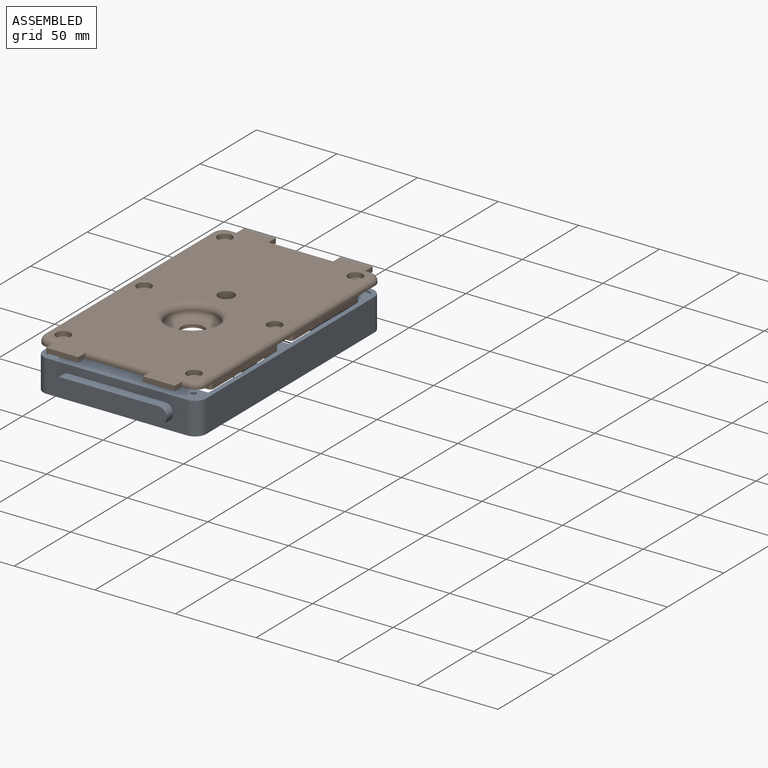
[diagram: assembled view]
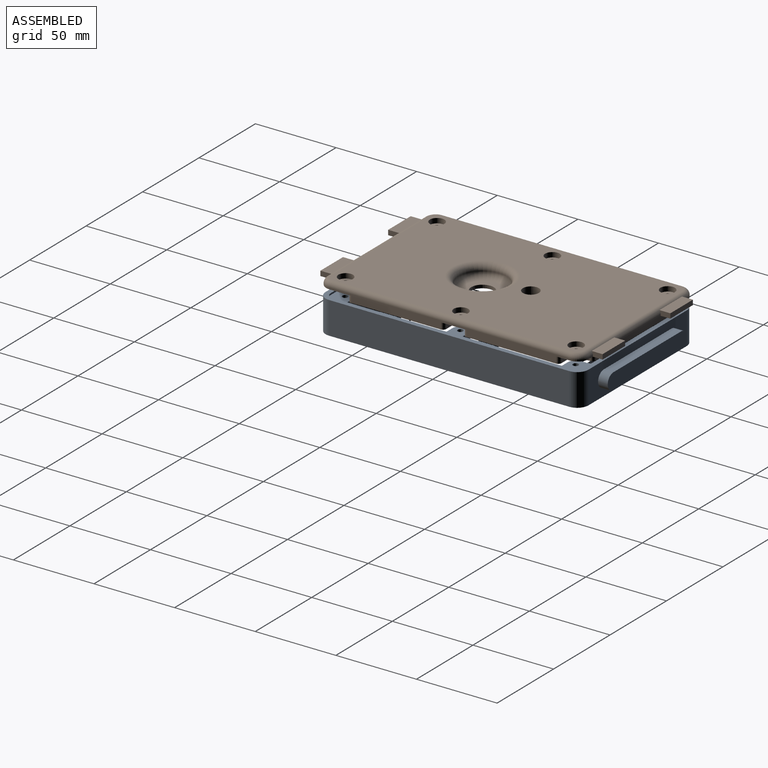
[diagram: assembled view, second angle]
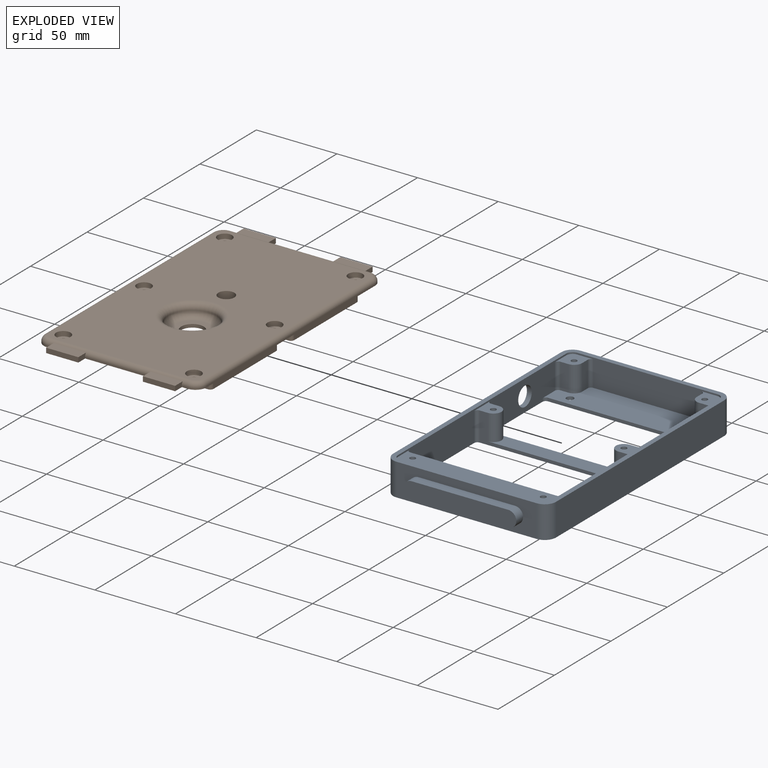
[diagram: exploded view]
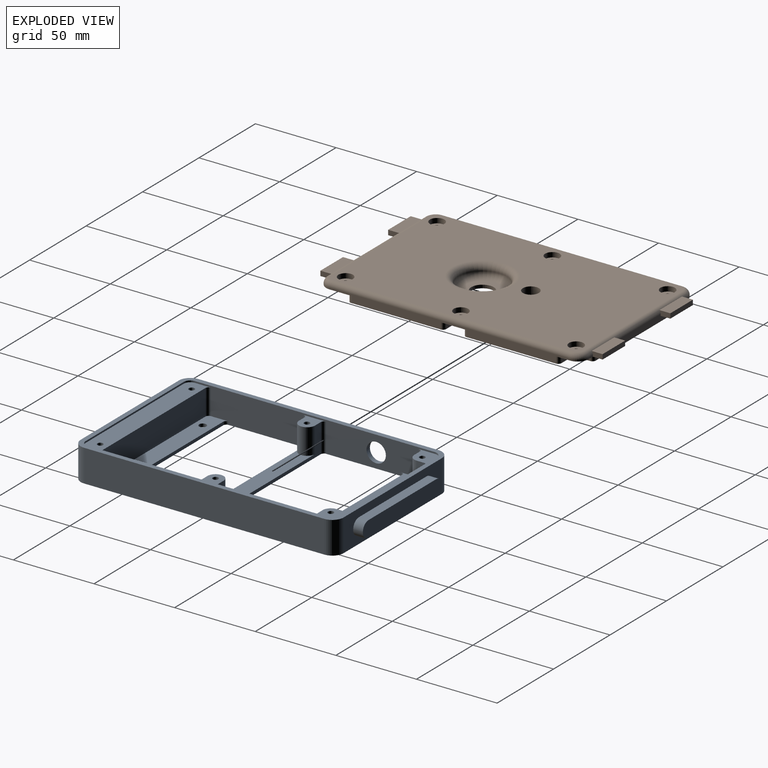
[diagram: exploded view, second angle]
ASSEMBLY  parts=2 mates=3
PART A: 83 faces, bbox 101x175x20 mm
  f0: plane 87x20mm, normal (0,1,0), area 1061.5mm2, adj f21,f26,f32,f33,f73,f74,f75,f76
  f1: plane 149x19mm, normal (-1,0,0), area 2175mm2, adj f3,f6,f12,f16,f20,f22,f23,f24
  f2: plane 149x19mm, normal (1,0,0), area 2061.9mm2, adj f7,f8,f10,f18,f20,f22,f25,f33
  f3: cylinder r=2mm len=18mm, axis (0,0,1), area 56.5mm2, adj f1,f4,f23,f64
  f4: plane 91x18mm, normal (0,-1,0), area 342mm2, adj f3,f8,f19,f23,f40,f44,f55,f64
  f5: plane 91x18mm, normal (0,1,0), area 342mm2, adj f6,f7,f19,f23,f40,f44,f55,f64
  f6: cylinder r=2mm len=18mm, axis (0,0,1), area 56.5mm2, adj f1,f5,f23,f64
  f7: cylinder r=2mm len=18mm, axis (0,0,1), area 56.5mm2, adj f2,f5,f40,f64
  f8: cylinder r=2mm len=18mm, axis (0,0,1), area 56.5mm2, adj f2,f4,f40,f64
  f9: cylinder r=2.25mm len=4.5mm, axis (0,0,1), area 28.3mm2, adj f56,f64
  f10: cylinder r=2mm len=2mm, axis (0,0,1), area 6.3mm2, adj f2,f11,f56,f64
  f11: plane 91x2mm, normal (0,1,0), area 182mm2, adj f10,f12,f56,f64
  f12: cylinder r=2mm len=2mm, axis (0,0,1), area 6.3mm2, adj f1,f11,f56,f64
  f13: cylinder r=2.25mm len=4.5mm, axis (0,0,1), area 28.3mm2, adj f56,f64
  f14: cylinder r=2.25mm len=4.5mm, axis (0,0,1), area 28.3mm2, adj f20,f64
  f15: cylinder r=2.25mm len=4.5mm, axis (0,0,1), area 28.3mm2, adj f20,f64
  f16: cylinder r=2mm len=2mm, axis (0,0,1), area 6.3mm2, adj f1,f17,f20,f64
  f17: plane 91x2mm, normal (0,-1,0), area 182mm2, adj f16,f18,f20,f64
  f18: cylinder r=2mm len=2mm, axis (0,0,1), area 6.3mm2, adj f2,f17,f20,f64
  f19: plane 81x10mm, normal (0,0,1), area 731.5mm2, adj f4,f5,f44,f55
  f20: plane 95x25mm, normal (0,0,1), area 1874.2mm2, adj f1,f2,f14,f15,f16,f17,f18,f35
  f21: plane 163x101mm, normal (0,0,-1), area 512.8mm2, adj f0,f26,f27,f28,f29,f30,f31,f32
  f22: plane 95x14mm, normal (0,0,1), area 1115.6mm2, adj f1,f2,f37,f38,f39,f41,f42,f43
  f23: plane 14x12mm, normal (0,0,1), area 101.4mm2, adj f1,f3,f4,f5,f6,f44,f60
  f24: plane 14x14mm, normal (0,0,1), area 127.3mm2, adj f1,f34,f35,f45,f46,f47,f48,f49
  f25: plane 14x14mm, normal (0,0,1), area 127.3mm2, adj f2,f35,f36,f50,f51,f52,f53,f54
  f26: cylinder r=7mm len=20mm, axis (0,0,-1), area 219.9mm2, adj f0,f21,f27,f33
  f27: plane 149x20mm, normal (-1,0,0), area 2866.9mm2, adj f21,f26,f28,f33,f63
  f28: cylinder r=7mm len=20mm, axis (0,0,-1), area 219.9mm2, adj f21,f27,f29,f33
  f29: plane 87x20mm, normal (0,-1,0), area 1061.5mm2, adj f21,f28,f30,f33,f78,f79,f80,f81
  f30: cylinder r=7mm len=20mm, axis (0,0,-1), area 219.9mm2, adj f21,f29,f31,f33
  f31: plane 149x20mm, normal (1,0,0), area 2980mm2, adj f21,f30,f32,f33
  f32: cylinder r=7mm len=20mm, axis (0,0,-1), area 219.9mm2, adj f0,f21,f31,f33
  f33: plane 163x101mm, normal (0,0,1), area 1519.7mm2, adj f0,f1,f2,f26,f27,f28,f29,f30
  f34: cylinder r=4mm len=4mm, axis (0,0,1), area 6.3mm2, adj f1,f24,f33,f35
  f35: plane 87x17mm, normal (0,-1,0), area 1159mm2, adj f20,f24,f25,f33,f34,f36,f49,f50
  f36: cylinder r=4mm len=4mm, axis (0,0,1), area 6.3mm2, adj f2,f25,f33,f35
  f37: cylinder r=4mm len=4mm, axis (0,0,1), area 6.3mm2, adj f2,f22,f33,f38
  f38: plane 87x1mm, normal (0,1,0), area 87mm2, adj f22,f33,f37,f39
  f39: cylinder r=4mm len=4mm, axis (0,0,1), area 6.3mm2, adj f1,f22,f33,f38
  f40: plane 14x12mm, normal (0,0,1), area 101.4mm2, adj f2,f4,f5,f7,f8,f55,f57
  f41: cylinder r=2mm len=16mm, axis (0,0,1), area 50.3mm2, adj f2,f22,f42,f56
  f42: plane 91x16mm, normal (0,1,0), area 1456mm2, adj f22,f41,f43,f56
  f43: cylinder r=2mm len=16mm, axis (0,0,1), area 50.3mm2, adj f1,f22,f42,f56
  f44: cylinder r=5mm len=16mm, axis (0,0,1), area 251.3mm2, adj f4,f5,f19,f23
  f45: cylinder r=2mm len=16mm, axis (0,0,1), area 50.3mm2, adj f1,f20,f24,f46
  f46: plane 16x5mm, normal (0,-1,0), area 80mm2, adj f20,f24,f45,f47
  f47: cylinder r=5mm len=16mm, axis (0,0,1), area 125.7mm2, adj f20,f24,f46,f48
  f48: plane 16x5mm, normal (-1,0,0), area 80mm2, adj f20,f24,f47,f49
  f49: cylinder r=2mm len=16mm, axis (0,0,1), area 50.3mm2, adj f20,f24,f35,f48
  f50: cylinder r=2mm len=16mm, axis (0,0,1), area 50.3mm2, adj f20,f25,f35,f51
  f51: plane 16x5mm, normal (1,0,0), area 80mm2, adj f20,f25,f50,f52
  f52: cylinder r=5mm len=16mm, axis (0,0,1), area 125.7mm2, adj f20,f25,f51,f53
  f53: plane 16x5mm, normal (0,-1,0), area 80mm2, adj f20,f25,f52,f54
  f54: cylinder r=2mm len=16mm, axis (0,0,1), area 50.3mm2, adj f2,f20,f25,f53
  f55: cylinder r=5mm len=16mm, axis (0,0,1), area 251.3mm2, adj f4,f5,f19,f40
  f56: plane 95x13mm, normal (0,0,1), area 1013.2mm2, adj f1,f2,f9,f10,f11,f12,f13,f41
  f57: cylinder r=1.75mm len=18mm, axis (0,0,1), area 197.9mm2, adj f40,f64
  f58: cylinder r=1.75mm len=18mm, axis (0,0,1), area 197.9mm2, adj f25,f64
  f59: cylinder r=1.75mm len=18mm, axis (0,0,1), area 197.9mm2, adj f24,f64
  f60: cylinder r=1.75mm len=18mm, axis (0,0,1), area 197.9mm2, adj f23,f64
  f61: cylinder r=1.75mm len=18mm, axis (0,0,1), area 197.9mm2, adj f22,f64
  f62: cylinder r=1.75mm len=18mm, axis (0,0,1), area 197.9mm2, adj f22,f64
  f63: cylinder r=6mm len=12mm, axis (-1,0,0), area 113.1mm2, adj f2,f27
  f64: plane 161x99mm, normal (0,0,-1), area 6198.6mm2, adj f1,f2,f3,f4,f5,f6,f7,f8
  f65: plane 87x1mm, normal (0,-1,0), area 87mm2, adj f21,f64,f66,f72
  f66: cylinder r=6mm len=6mm, axis (0,0,-1), area 9.4mm2, adj f21,f64,f65,f67
  f67: plane 149x1mm, normal (-1,0,0), area 149mm2, adj f21,f64,f66,f68
  f68: cylinder r=6mm len=6mm, axis (0,0,-1), area 9.4mm2, adj f21,f64,f67,f69
  f69: plane 87x1mm, normal (0,1,0), area 87mm2, adj f21,f64,f68,f70
  f70: cylinder r=6mm len=6mm, axis (0,0,-1), area 9.4mm2, adj f21,f64,f69,f71
  f71: plane 149x1mm, normal (1,0,0), area 149mm2, adj f21,f64,f70,f72
  f72: cylinder r=6mm len=6mm, axis (0,0,-1), area 9.4mm2, adj f21,f64,f65,f71
  f73: plane 60x6mm, normal (0,0,1), area 360mm2, adj f0,f74,f76,f77
  f74: cylinder r=5mm len=10mm, axis (0,-1,0), area 94.2mm2, adj f0,f73,f75,f77
  f75: plane 60x6mm, normal (0,0,-1), area 360mm2, adj f0,f74,f76,f77
  f76: cylinder r=5mm len=10mm, axis (0,-1,0), area 94.2mm2, adj f0,f73,f75,f77
  f77: plane 70x10mm, normal (0,1,0), area 678.5mm2, adj f73,f74,f75,f76
  f78: cylinder r=5mm len=10mm, axis (0,1,0), area 94.2mm2, adj f29,f79,f81,f82
  f79: plane 60x6mm, normal (0,0,1), area 360mm2, adj f29,f78,f80,f82
  f80: cylinder r=5mm len=10mm, axis (0,1,0), area 94.2mm2, adj f29,f79,f81,f82
  f81: plane 60x6mm, normal (0,0,-1), area 360mm2, adj f29,f78,f80,f82
  f82: plane 70x10mm, normal (0,-1,0), area 678.5mm2, adj f78,f79,f80,f81
PART B: 96 faces, bbox 102.2x175x10 mm
  f0: plane 55.5x6mm, normal (-1,0,0), area 133mm2, adj f18,f47,f52,f53,f56,f77,f83
  f1: plane 55.5x6mm, normal (-1,0,0), area 333mm2, adj f18,f47,f87,f93
  f2: cylinder r=2.25mm len=4.5mm, axis (0,0,-1), area 14.1mm2, adj f29,f47
  f3: cylinder r=2.25mm len=4.5mm, axis (0,0,-1), area 14.1mm2, adj f33,f47
  f4: cylinder r=2.25mm len=4.5mm, axis (0,0,-1), area 14.1mm2, adj f35,f47
  f5: cylinder r=2.25mm len=4.5mm, axis (0,0,-1), area 14.1mm2, adj f37,f47
  f6: cylinder r=2.25mm len=4.5mm, axis (0,0,-1), area 14.1mm2, adj f39,f47
  f7: cylinder r=2.25mm len=4.5mm, axis (0,0,-1), area 14.1mm2, adj f31,f47
  f8: plane 65x6mm, normal (0,1,0), area 390mm2, adj f18,f47,f73,f82
  f9: plane 55.5x6mm, normal (1,0,0), area 333mm2, adj f18,f47,f88,f95
  f10: plane 55.5x6mm, normal (1,0,0), area 333mm2, adj f18,f47,f78,f92
  f11: plane 3.5x1mm, normal (0,1,0), area 3.5mm2, adj f13,f20,f47,f70
  f12: plane 3.5x1mm, normal (0,1,0), area 3.5mm2, adj f13,f26,f47,f67
  f13: cylinder r=3mm len=87mm, axis (1,0,0), area 322.4mm2, adj f11,f12,f19,f27,f40,f41,f65,f66
  f14: plane 40x1mm, normal (0,-1,0), area 40mm2, adj f16,f47,f57,f61
  f15: plane 3.5x1mm, normal (0,-1,0), area 3.5mm2, adj f16,f22,f47,f59
  f16: cylinder r=3mm len=87mm, axis (-1,0,0), area 322.4mm2, adj f14,f15,f23,f27,f44,f45,f57,f58
  f17: cylinder r=7mm len=14mm, axis (0,0,1), area 88mm2, adj f18,f48
  f18: plane 143.5x94mm, normal (0,0,-1), area 11285.7mm2, adj f0,f1,f8,f9,f10,f17,f46,f51
  f19: plane 40x1mm, normal (0,1,0), area 40mm2, adj f13,f47,f65,f69
  f20: cylinder r=7mm len=7mm, axis (0,0,-1), area 11mm2, adj f11,f21,f40,f47
  f21: plane 149x1mm, normal (-1,0,0), area 149mm2, adj f20,f22,f42,f47
  f22: cylinder r=7mm len=7mm, axis (0,0,-1), area 11mm2, adj f15,f21,f44,f47
  f23: plane 3.5x1mm, normal (0,-1,0), area 3.5mm2, adj f16,f24,f47,f62
  f24: cylinder r=7mm len=7mm, axis (0,0,-1), area 11mm2, adj f23,f25,f45,f47
  f25: plane 149x1mm, normal (1,0,0), area 149mm2, adj f24,f26,f43,f47
  f26: cylinder r=7mm len=7mm, axis (0,0,-1), area 11mm2, adj f12,f25,f41,f47
  f27: plane 157x95mm, normal (0,0,1), area 13306.9mm2, adj f13,f16,f28,f30,f32,f34,f36,f38
  f28: cylinder r=4.5mm len=9mm, axis (0,0,1), area 84.8mm2, adj f27,f29
  f29: plane 9x9mm, normal (0,0,1), area 47.7mm2, adj f2,f28
  f30: cylinder r=4.5mm len=9mm, axis (0,0,1), area 84.8mm2, adj f27,f31
  f31: plane 9x9mm, normal (0,0,1), area 47.7mm2, adj f7,f30
  f32: cylinder r=4.5mm len=9mm, axis (0,0,1), area 84.8mm2, adj f27,f33
  f33: plane 9x9mm, normal (0,0,1), area 47.7mm2, adj f3,f32
  f34: cylinder r=4.5mm len=9mm, axis (0,0,1), area 84.8mm2, adj f27,f35
  f35: plane 9x9mm, normal (0,0,1), area 47.7mm2, adj f4,f34
  f36: cylinder r=4.5mm len=9mm, axis (0,0,1), area 84.8mm2, adj f27,f37
  f37: plane 9x9mm, normal (0,0,1), area 47.7mm2, adj f5,f36
  f38: cylinder r=4.5mm len=9mm, axis (0,0,1), area 84.8mm2, adj f27,f39
  f39: plane 9x9mm, normal (0,0,1), area 47.7mm2, adj f6,f38
  f40: torus R=4mm, axis (0,0,1), area 43.7mm2, adj f13,f20,f27,f42
  f41: torus R=4mm, axis (0,0,1), area 43.7mm2, adj f13,f26,f27,f43
  f42: cylinder r=3mm len=149mm, axis (0,1,0), area 702.1mm2, adj f21,f27,f40,f44
  f43: cylinder r=3mm len=149mm, axis (0,-1,0), area 702.1mm2, adj f25,f27,f41,f45
  f44: torus R=4mm, axis (0,0,1), area 43.7mm2, adj f16,f22,f27,f42
  f45: torus R=4mm, axis (0,0,1), area 43.7mm2, adj f16,f24,f27,f43
  f46: cylinder r=5mm len=10mm, axis (0,0,1), area 314.2mm2, adj f18,f27
  f47: plane 175x101mm, normal (0,0,-1), area 3891.2mm2, adj f0,f1,f2,f3,f4,f5,f6,f7
  f48: plane 22x22mm, normal (0,0,1), area 226.2mm2, adj f17,f49
  f49: torus R=11mm, axis (0,0,1), area 534.8mm2, adj f48,f50
  f50: torus R=19mm, axis (0,0,1), area 649.6mm2, adj f27,f49
  f51: cylinder r=3mm len=5mm, axis (0,0,-1), area 23.6mm2, adj f18,f52,f55,f56
  f52: plane 32x5mm, normal (0,1,0), area 160mm2, adj f0,f18,f51,f56
  f53: plane 32x5mm, normal (0,-1,0), area 160mm2, adj f0,f18,f54,f56
  f54: cylinder r=3mm len=5mm, axis (0,0,-1), area 23.6mm2, adj f18,f53,f55,f56
  f55: plane 34x5mm, normal (-1,0,0), area 170mm2, adj f18,f51,f54,f56
  f56: plane 40x35mm, normal (0,0,-1), area 1396.1mm2, adj f0,f51,f52,f53,f54,f55
  f57: plane 6.76x3mm, normal (1,0,0), area 18.5mm2, adj f14,f16,f47,f58,f63
  f58: plane 20x6.76mm, normal (0,0,1), area 135.3mm2, adj f16,f57,f59,f63
  f59: plane 6.76x3mm, normal (-1,0,0), area 18.5mm2, adj f15,f16,f47,f58,f63
  f60: plane 20x6.76mm, normal (0,0,1), area 135.3mm2, adj f16,f61,f62,f64
  f61: plane 6.76x3mm, normal (-1,0,0), area 18.5mm2, adj f14,f16,f47,f60,f64
  f62: plane 6.76x3mm, normal (1,0,0), area 18.5mm2, adj f16,f23,f47,f60,f64
  f63: plane 20x3mm, normal (0,-1,0), area 60mm2, adj f47,f57,f58,f59
  f64: plane 20x3mm, normal (0,-1,0), area 60mm2, adj f47,f60,f61,f62
  f65: plane 6.76x3mm, normal (-1,0,0), area 18.5mm2, adj f13,f19,f47,f66,f71
  f66: plane 20x6.76mm, normal (0,0,1), area 135.3mm2, adj f13,f65,f67,f71
  f67: plane 6.76x3mm, normal (1,0,0), area 18.5mm2, adj f12,f13,f47,f66,f71
  f68: plane 20x6.76mm, normal (0,0,1), area 135.3mm2, adj f13,f69,f70,f72
  f69: plane 6.76x3mm, normal (1,0,0), area 18.5mm2, adj f13,f19,f47,f68,f72
  f70: plane 6.76x3mm, normal (-1,0,0), area 18.5mm2, adj f11,f13,f47,f68,f72
  f71: plane 20x3mm, normal (0,1,0), area 60mm2, adj f47,f65,f66,f67
  f72: plane 20x3mm, normal (0,1,0), area 60mm2, adj f47,f68,f69,f70
  f73: cylinder r=2mm len=6mm, axis (0,0,-1), area 18.8mm2, adj f8,f18,f47,f74
  f74: plane 6x4.5mm, normal (-1,0,0), area 27mm2, adj f18,f47,f73,f75
  f75: cylinder r=6mm len=6mm, axis (0,0,-1), area 56.5mm2, adj f18,f47,f74,f76
  f76: plane 6x4.5mm, normal (0,1,0), area 27mm2, adj f18,f47,f75,f77
  f77: cylinder r=2mm len=6mm, axis (0,0,-1), area 18.8mm2, adj f0,f18,f47,f76
  f78: cylinder r=2mm len=6mm, axis (0,0,-1), area 18.8mm2, adj f10,f18,f47,f79
  f79: plane 6x4.5mm, normal (0,1,0), area 27mm2, adj f18,f47,f78,f80
  f80: cylinder r=6mm len=6mm, axis (0,0,-1), area 56.5mm2, adj f18,f47,f79,f81
  f81: plane 6x4.5mm, normal (1,0,0), area 27mm2, adj f18,f47,f80,f82
  f82: cylinder r=2mm len=6mm, axis (0,0,-1), area 18.8mm2, adj f8,f18,f47,f81
  f83: cylinder r=2mm len=6mm, axis (0,0,-1), area 18.8mm2, adj f0,f18,f47,f84
  f84: plane 6x4.5mm, normal (0,-1,0), area 27mm2, adj f18,f47,f83,f85
  f85: cylinder r=6mm len=12mm, axis (0,0,-1), area 113.1mm2, adj f18,f47,f84,f86
  f86: plane 6x4.5mm, normal (0,1,0), area 27mm2, adj f18,f47,f85,f87
  f87: cylinder r=2mm len=6mm, axis (0,0,-1), area 18.8mm2, adj f1,f18,f47,f86
  f88: cylinder r=2mm len=6mm, axis (0,0,-1), area 18.8mm2, adj f9,f18,f47,f89
  f89: plane 6x4.5mm, normal (0,1,0), area 27mm2, adj f18,f47,f88,f90
  f90: cylinder r=6mm len=12mm, axis (0,0,-1), area 113.1mm2, adj f18,f47,f89,f91
  f91: plane 6x4.5mm, normal (0,-1,0), area 27mm2, adj f18,f47,f90,f92
  f92: cylinder r=2mm len=6mm, axis (0,0,-1), area 18.8mm2, adj f10,f18,f47,f91
  f93: cylinder r=2mm len=6mm, axis (0,0,-1), area 18.8mm2, adj f1,f18,f47,f94
  f94: plane 90x6mm, normal (0,-1,0), area 540mm2, adj f18,f47,f93,f95
  f95: cylinder r=2mm len=6mm, axis (0,0,-1), area 18.8mm2, adj f9,f18,f47,f94
PLACE A t=(-7.86,5.07,-5.67)mm
PLACE B t=(-7.82,5.4,9.38)mm
MATE parallel A.f27 <-> B.f21  axis (-1,0,0) through (-58.36,3.57,-5.67)mm
MATE parallel B.f14 <-> A.f29  axis (0,-1,0) through (-7.82,-76.1,10.88)mm
MATE parallel A.f33 <-> B.f47  axis (0,0,1) through (-7.86,5.07,4.33)mm
